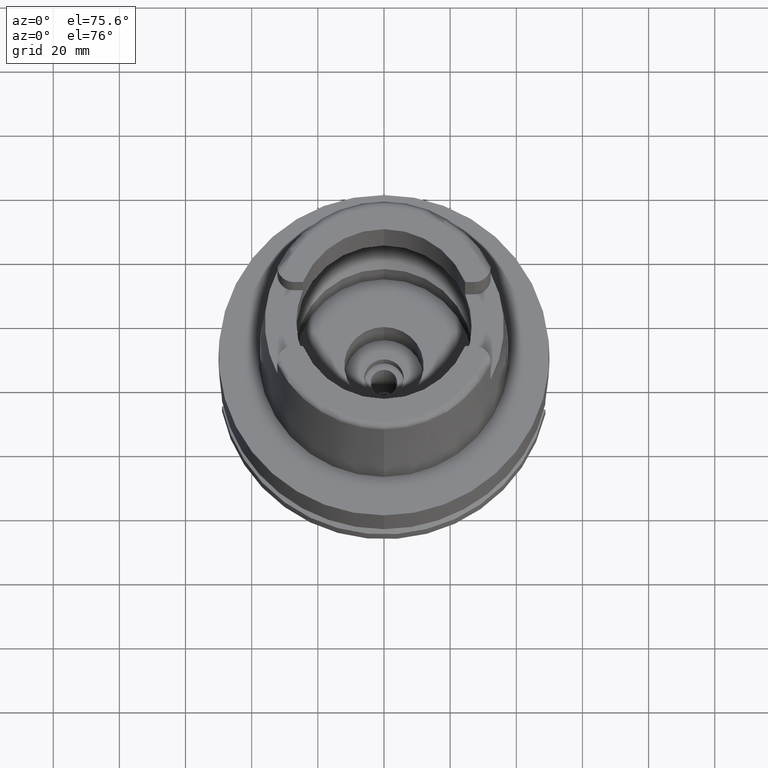
[diagram: clean part render]
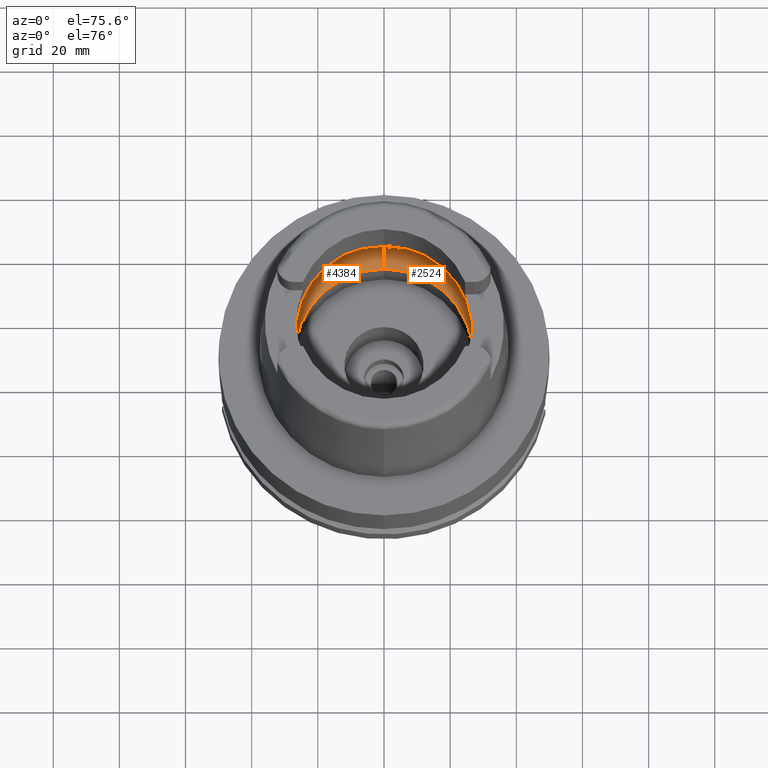
[diagram: same view with one multi-face feature highlighted, each face labeled with its STEP entity id]
A machine part, auxiliary view. The highlighted faces form ONE feature: a constant-radius fillet chain: 2 tangent blend faces with common blend radius 12 mm. The faces share edges in the B-rep.
Their STEP definitions:
[1] entity #2524 (Torus):
#37 = EDGE_CURVE ( 'NONE', #1216, #3110, #585, .T. ) ;
#115 = AXIS2_PLACEMENT_3D ( 'NONE', #5029, #6057, #6025 ) ;
#314 = CARTESIAN_POINT ( 'NONE',  ( 0.0000000000000000000, -19.50000000000000000, 9.496624327025999790 ) ) ;
#435 = CARTESIAN_POINT ( 'NONE',  ( 31.48971910753999026, -0.8697454017312684638, 8.999999999999998224 ) ) ;
#441 = EDGE_CURVE ( 'NONE', #1910, #1038, #3447, .T. ) ;
#560 = ORIENTED_EDGE ( 'NONE', *, *, #441, .F. ) ;
#585 = B_SPLINE_CURVE_WITH_KNOTS ( 'NONE', 3,
 ( #3637, #5110, #3700, #3736 ),
 .UNSPECIFIED., .F., .F.,
 ( 4, 4 ),
 ( 0.0000000000000000000, 1.000000000000000000 ),
 .UNSPECIFIED. ) ;
#605 = CIRCLE ( 'NONE', #115, 31.50000000000000000 ) ;
#817 = DIRECTION ( 'NONE',  ( 0.0000000000000000000, 1.000000000000000000, 0.0000000000000000000 ) ) ;
#900 = VERTEX_POINT ( 'NONE', #4790 ) ;
#913 = ORIENTED_EDGE ( 'NONE', *, *, #5181, .F. ) ;
#936 = CARTESIAN_POINT ( 'NONE',  ( 0.0000000000000000000, 0.0000000000000000000, 9.496624327025999790 ) ) ;
#1038 = VERTEX_POINT ( 'NONE', #1224 ) ;
#1099 = ORIENTED_EDGE ( 'NONE', *, *, #1989, .F. ) ;
#1158 = ORIENTED_EDGE ( 'NONE', *, *, #37, .F. ) ;
#1216 = VERTEX_POINT ( 'NONE', #3649 ) ;
#1224 = CARTESIAN_POINT ( 'NONE',  ( 0.0000000000000000000, 31.50000000000000000, 9.496624327025999790 ) ) ;
#1323 = AXIS2_PLACEMENT_3D ( 'NONE', #936, #4372, #3379 ) ;
#1355 = CARTESIAN_POINT ( 'NONE',  ( 31.48971910754000447, 0.0000000000000000000, 9.000000000000000000 ) ) ;
#1499 = ORIENTED_EDGE ( 'NONE', *, *, #4847, .F. ) ;
#1625 = CARTESIAN_POINT ( 'NONE',  ( 0.0000000000000000000, -26.89999999999999858, 0.04993178413032000468 ) ) ;
#1648 = EDGE_LOOP ( 'NONE', ( #1158, #2385, #560, #1099, #1938, #913, #1499 ) ) ;
#1737 = B_SPLINE_CURVE_WITH_KNOTS ( 'NONE', 3,
 ( #1355, #435, #2300, #2856 ),
 .UNSPECIFIED., .F., .F.,
 ( 4, 4 ),
 ( 0.0000000000000000000, 1.000000000000000000 ),
 .UNSPECIFIED. ) ;
#1904 = CARTESIAN_POINT ( 'NONE',  ( 31.48971910754000447, 0.0000000000000000000, 9.000000000000000000 ) ) ;
#1910 = VERTEX_POINT ( 'NONE', #5374 ) ;
#1938 = ORIENTED_EDGE ( 'NONE', *, *, #5937, .T. ) ;
#1981 = AXIS2_PLACEMENT_3D ( 'NONE', #3655, #5556, #817 ) ;
#1989 = EDGE_CURVE ( 'NONE', #5081, #1910, #3171, .T. ) ;
#2148 = DIRECTION ( 'NONE',  ( 0.0000000000000000000, -1.000000000000000000, 0.0000000000000000000 ) ) ;
#2274 = DIRECTION ( 'NONE',  ( 0.0000000000000000000, -0.6166666666667049990, -0.7872243785746061429 ) ) ;
#2300 = CARTESIAN_POINT ( 'NONE',  ( 31.46287568614665986, -1.684656699965325632, 9.190219625007294724 ) ) ;
#2385 = ORIENTED_EDGE ( 'NONE', *, *, #3533, .F. ) ;
#2480 = TOROIDAL_SURFACE ( 'NONE', #1981, 19.50000000000000000, 12.00000000000000000 ) ;
#2524 = ADVANCED_FACE ( 'NONE', ( #2699 ), #2480, .F. ) ;
#2699 = FACE_OUTER_BOUND ( 'NONE', #1648, .T. ) ;
#2856 = CARTESIAN_POINT ( 'NONE',  ( 31.40918884336000616, -2.390158196043999705, 9.496624327025999790 ) ) ;
#3110 = VERTEX_POINT ( 'NONE', #1904 ) ;
#3171 = CIRCLE ( 'NONE', #5940, 26.89999999999999858 ) ;
#3379 = DIRECTION ( 'NONE',  ( 0.9971171061384295209, -0.07587803796965221503, 0.0000000000000000000 ) ) ;
#3428 = CIRCLE ( 'NONE', #4628, 11.99999999999999822 ) ;
#3447 = CIRCLE ( 'NONE', #5236, 11.99999999999999822 ) ;
#3533 = EDGE_CURVE ( 'NONE', #1038, #1216, #605, .T. ) ;
#3637 = CARTESIAN_POINT ( 'NONE',  ( 31.40918884336000616, 2.390158196043999705, 9.496624327025999790 ) ) ;
#3649 = CARTESIAN_POINT ( 'NONE',  ( 31.40918884336000616, 2.390158196043999705, 9.496624327025999790 ) ) ;
#3655 = CARTESIAN_POINT ( 'NONE',  ( 0.0000000000000000000, 0.0000000000000000000, 9.496624327025999790 ) ) ;
#3700 = CARTESIAN_POINT ( 'NONE',  ( 31.48971910753999026, 0.8697454017787721314, 9.000000000000001776 ) ) ;
#3736 = CARTESIAN_POINT ( 'NONE',  ( 31.48971910754000447, 0.0000000000000000000, 9.000000000000000000 ) ) ;
#3914 = DIRECTION ( 'NONE',  ( 1.000000000000000000, 0.0000000000000000000, 0.0000000000000000000 ) ) ;
#3917 = CARTESIAN_POINT ( 'NONE',  ( 0.0000000000000000000, -31.50000000000000000, 9.496624327025999790 ) ) ;
#4005 = CIRCLE ( 'NONE', #1323, 31.49999999999998934 ) ;
#4372 = DIRECTION ( 'NONE',  ( 0.0000000000000000000, 0.0000000000000000000, -1.000000000000000000 ) ) ;
#4628 = AXIS2_PLACEMENT_3D ( 'NONE', #314, #4670, #2274 ) ;
#4670 = DIRECTION ( 'NONE',  ( -1.000000000000000000, 0.0000000000000000000, 0.0000000000000000000 ) ) ;
#4790 = CARTESIAN_POINT ( 'NONE',  ( 31.40918884336000616, -2.390158196043999705, 9.496624327025999790 ) ) ;
#4826 = CARTESIAN_POINT ( 'NONE',  ( 0.0000000000000000000, 19.50000000000000000, 9.496624327025999790 ) ) ;
#4847 = EDGE_CURVE ( 'NONE', #3110, #900, #1737, .T. ) ;
#4885 = CARTESIAN_POINT ( 'NONE',  ( 0.0000000000000000000, 0.0000000000000000000, 0.04993178413032000468 ) ) ;
#5029 = CARTESIAN_POINT ( 'NONE',  ( 0.0000000000000000000, 0.0000000000000000000, 9.496624327025999790 ) ) ;
#5081 = VERTEX_POINT ( 'NONE', #1625 ) ;
#5110 = CARTESIAN_POINT ( 'NONE',  ( 31.46287568614665986, 1.684656700008886121, 9.190219625026216477 ) ) ;
#5181 = EDGE_CURVE ( 'NONE', #900, #5619, #4005, .T. ) ;
#5236 = AXIS2_PLACEMENT_3D ( 'NONE', #4826, #3914, #5751 ) ;
#5374 = CARTESIAN_POINT ( 'NONE',  ( 0.0000000000000000000, 26.89999999999999858, 0.04993178413032000468 ) ) ;
#5556 = DIRECTION ( 'NONE',  ( 0.0000000000000000000, 0.0000000000000000000, 1.000000000000000000 ) ) ;
#5619 = VERTEX_POINT ( 'NONE', #3917 ) ;
#5751 = DIRECTION ( 'NONE',  ( 0.0000000000000000000, 0.6166666666667049990, -0.7872243785746061429 ) ) ;
#5866 = DIRECTION ( 'NONE',  ( 0.0000000000000000000, 0.0000000000000000000, 1.000000000000000000 ) ) ;
#5937 = EDGE_CURVE ( 'NONE', #5081, #5619, #3428, .T. ) ;
#5940 = AXIS2_PLACEMENT_3D ( 'NONE', #4885, #5866, #2148 ) ;
#6025 = DIRECTION ( 'NONE',  ( 0.0000000000000000000, 1.000000000000000000, 0.0000000000000000000 ) ) ;
#6057 = DIRECTION ( 'NONE',  ( 0.0000000000000000000, 0.0000000000000000000, -1.000000000000000000 ) ) ;
[2] entity #4384 (Torus):
#10 = DIRECTION ( 'NONE',  ( 0.0000000000000000000, -1.000000000000000000, 0.0000000000000000000 ) ) ;
#283 = CARTESIAN_POINT ( 'NONE',  ( -31.40918884336000616, -2.390158196043999705, 9.496624327025999790 ) ) ;
#314 = CARTESIAN_POINT ( 'NONE',  ( 0.0000000000000000000, -19.50000000000000000, 9.496624327025999790 ) ) ;
#318 = B_SPLINE_CURVE_WITH_KNOTS ( 'NONE', 3,
 ( #3329, #2456, #1010, #5651 ),
 .UNSPECIFIED., .F., .F.,
 ( 4, 4 ),
 ( 0.0000000000000000000, 1.000000000000000000 ),
 .UNSPECIFIED. ) ;
#326 = ORIENTED_EDGE ( 'NONE', *, *, #3684, .F. ) ;
#441 = EDGE_CURVE ( 'NONE', #1910, #1038, #3447, .T. ) ;
#505 = AXIS2_PLACEMENT_3D ( 'NONE', #4777, #2410, #3432 ) ;
#555 = ORIENTED_EDGE ( 'NONE', *, *, #3644, .F. ) ;
#589 = ORIENTED_EDGE ( 'NONE', *, *, #872, .F. ) ;
#615 = ORIENTED_EDGE ( 'NONE', *, *, #441, .T. ) ;
#617 = ORIENTED_EDGE ( 'NONE', *, *, #1836, .F. ) ;
#872 = EDGE_CURVE ( 'NONE', #1910, #5081, #1465, .T. ) ;
#924 = CARTESIAN_POINT ( 'NONE',  ( -31.48971910754000447, 0.0000000000000000000, 9.000000000000000000 ) ) ;
#1010 = CARTESIAN_POINT ( 'NONE',  ( -31.48971910754000447, -0.8697454018008697885, 8.999999999999998224 ) ) ;
#1038 = VERTEX_POINT ( 'NONE', #1224 ) ;
#1080 = CARTESIAN_POINT ( 'NONE',  ( -31.40918884336000616, 2.390158196043999705, 9.496624327025999790 ) ) ;
#1224 = CARTESIAN_POINT ( 'NONE',  ( 0.0000000000000000000, 31.50000000000000000, 9.496624327025999790 ) ) ;
#1421 = CIRCLE ( 'NONE', #5685, 31.50000000000000000 ) ;
#1424 = DIRECTION ( 'NONE',  ( 0.0000000000000000000, 0.0000000000000000000, -1.000000000000000000 ) ) ;
#1465 = CIRCLE ( 'NONE', #2469, 26.89999999999999858 ) ;
#1482 = CARTESIAN_POINT ( 'NONE',  ( 0.0000000000000000000, 0.0000000000000000000, 0.04993178413032000468 ) ) ;
#1625 = CARTESIAN_POINT ( 'NONE',  ( 0.0000000000000000000, -26.89999999999999858, 0.04993178413032000468 ) ) ;
#1836 = EDGE_CURVE ( 'NONE', #5784, #1038, #3951, .T. ) ;
#1910 = VERTEX_POINT ( 'NONE', #5374 ) ;
#1959 = CARTESIAN_POINT ( 'NONE',  ( 0.0000000000000000000, 0.0000000000000000000, 9.496624327025999790 ) ) ;
#2023 = CARTESIAN_POINT ( 'NONE',  ( -31.46287568614665986, 1.684656699916923683, 9.190219624986275093 ) ) ;
#2274 = DIRECTION ( 'NONE',  ( 0.0000000000000000000, -0.6166666666667049990, -0.7872243785746061429 ) ) ;
#2410 = DIRECTION ( 'NONE',  ( 0.0000000000000000000, 0.0000000000000000000, 1.000000000000000000 ) ) ;
#2456 = CARTESIAN_POINT ( 'NONE',  ( -31.46287568614665986, -1.684656700029165899, 9.190219625035021878 ) ) ;
#2469 = AXIS2_PLACEMENT_3D ( 'NONE', #1482, #4763, #3362 ) ;
#2485 = VERTEX_POINT ( 'NONE', #283 ) ;
#2670 = AXIS2_PLACEMENT_3D ( 'NONE', #2807, #3791, #5688 ) ;
#2807 = CARTESIAN_POINT ( 'NONE',  ( 0.0000000000000000000, 0.0000000000000000000, 9.496624327025999790 ) ) ;
#3198 = VERTEX_POINT ( 'NONE', #924 ) ;
#3254 = EDGE_CURVE ( 'NONE', #3198, #5784, #5520, .T. ) ;
#3329 = CARTESIAN_POINT ( 'NONE',  ( -31.40918884336000616, -2.390158196043999705, 9.496624327025999790 ) ) ;
#3362 = DIRECTION ( 'NONE',  ( 0.0000000000000000000, 1.000000000000000000, 0.0000000000000000000 ) ) ;
#3428 = CIRCLE ( 'NONE', #4628, 11.99999999999999822 ) ;
#3432 = DIRECTION ( 'NONE',  ( 0.0000000000000000000, 1.000000000000000000, 0.0000000000000000000 ) ) ;
#3447 = CIRCLE ( 'NONE', #5236, 11.99999999999999822 ) ;
#3644 = EDGE_CURVE ( 'NONE', #5619, #2485, #1421, .T. ) ;
#3684 = EDGE_CURVE ( 'NONE', #2485, #3198, #318, .T. ) ;
#3709 = ORIENTED_EDGE ( 'NONE', *, *, #5937, .F. ) ;
#3791 = DIRECTION ( 'NONE',  ( 0.0000000000000000000, 0.0000000000000000000, -1.000000000000000000 ) ) ;
#3914 = DIRECTION ( 'NONE',  ( 1.000000000000000000, 0.0000000000000000000, 0.0000000000000000000 ) ) ;
#3917 = CARTESIAN_POINT ( 'NONE',  ( 0.0000000000000000000, -31.50000000000000000, 9.496624327025999790 ) ) ;
#3951 = CIRCLE ( 'NONE', #2670, 31.49999999999998934 ) ;
#4217 = EDGE_LOOP ( 'NONE', ( #555, #3709, #589, #615, #617, #5740, #326 ) ) ;
#4338 = FACE_OUTER_BOUND ( 'NONE', #4217, .T. ) ;
#4384 = ADVANCED_FACE ( 'NONE', ( #4338 ), #5203, .F. ) ;
#4386 = CARTESIAN_POINT ( 'NONE',  ( -31.40918884336000616, 2.390158196043999705, 9.496624327025999790 ) ) ;
#4452 = CARTESIAN_POINT ( 'NONE',  ( -31.48971910754000447, 0.8697454016785111097, 9.000000000000001776 ) ) ;
#4628 = AXIS2_PLACEMENT_3D ( 'NONE', #314, #4670, #2274 ) ;
#4670 = DIRECTION ( 'NONE',  ( -1.000000000000000000, 0.0000000000000000000, 0.0000000000000000000 ) ) ;
#4763 = DIRECTION ( 'NONE',  ( 0.0000000000000000000, 0.0000000000000000000, 1.000000000000000000 ) ) ;
#4777 = CARTESIAN_POINT ( 'NONE',  ( 0.0000000000000000000, 0.0000000000000000000, 9.496624327025999790 ) ) ;
#4826 = CARTESIAN_POINT ( 'NONE',  ( 0.0000000000000000000, 19.50000000000000000, 9.496624327025999790 ) ) ;
#5081 = VERTEX_POINT ( 'NONE', #1625 ) ;
#5203 = TOROIDAL_SURFACE ( 'NONE', #505, 19.50000000000000000, 12.00000000000000000 ) ;
#5236 = AXIS2_PLACEMENT_3D ( 'NONE', #4826, #3914, #5751 ) ;
#5374 = CARTESIAN_POINT ( 'NONE',  ( 0.0000000000000000000, 26.89999999999999858, 0.04993178413032000468 ) ) ;
#5520 = B_SPLINE_CURVE_WITH_KNOTS ( 'NONE', 3,
 ( #5864, #4452, #2023, #1080 ),
 .UNSPECIFIED., .F., .F.,
 ( 4, 4 ),
 ( 0.0000000000000000000, 1.000000000000000000 ),
 .UNSPECIFIED. ) ;
#5619 = VERTEX_POINT ( 'NONE', #3917 ) ;
#5651 = CARTESIAN_POINT ( 'NONE',  ( -31.48971910754000447, 0.0000000000000000000, 9.000000000000000000 ) ) ;
#5685 = AXIS2_PLACEMENT_3D ( 'NONE', #1959, #1424, #10 ) ;
#5688 = DIRECTION ( 'NONE',  ( -0.9971171061384295209, 0.07587803796965221503, 0.0000000000000000000 ) ) ;
#5740 = ORIENTED_EDGE ( 'NONE', *, *, #3254, .F. ) ;
#5751 = DIRECTION ( 'NONE',  ( 0.0000000000000000000, 0.6166666666667049990, -0.7872243785746061429 ) ) ;
#5784 = VERTEX_POINT ( 'NONE', #4386 ) ;
#5864 = CARTESIAN_POINT ( 'NONE',  ( -31.48971910754000447, 0.0000000000000000000, 9.000000000000000000 ) ) ;
#5937 = EDGE_CURVE ( 'NONE', #5081, #5619, #3428, .T. ) ;